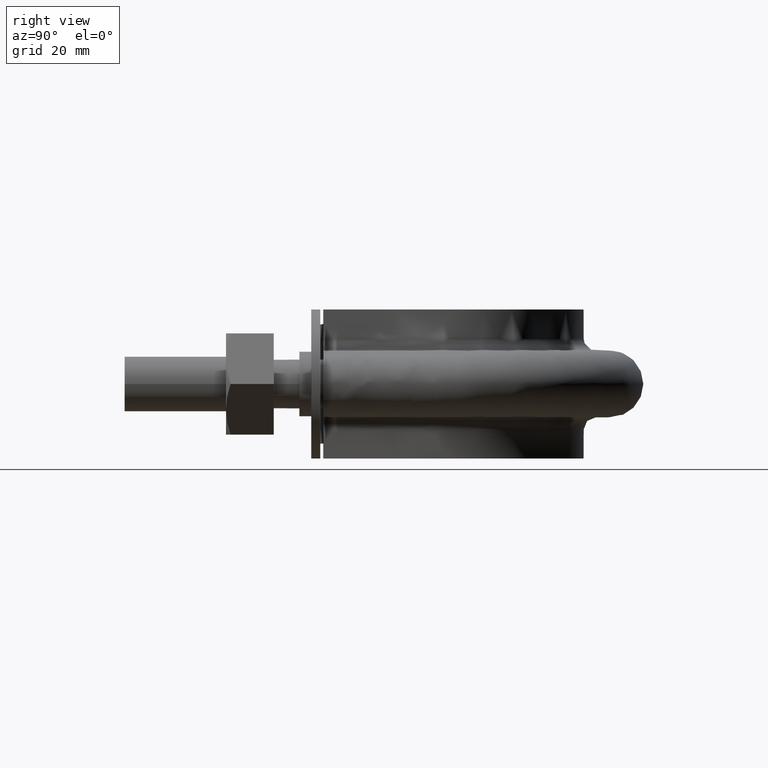
[diagram: clean part render]
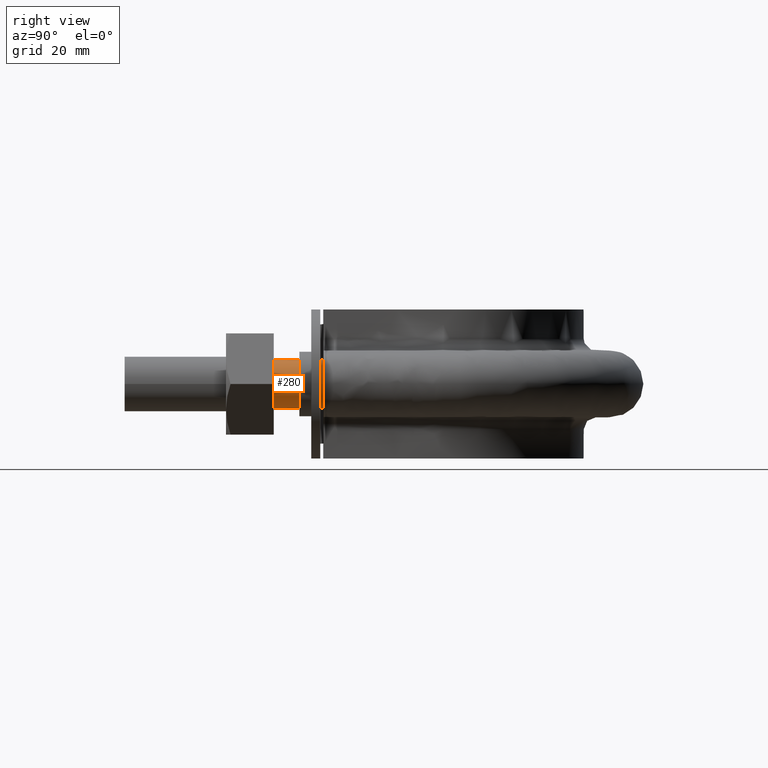
[diagram: same view with one face highlighted and labeled with its STEP entity id]
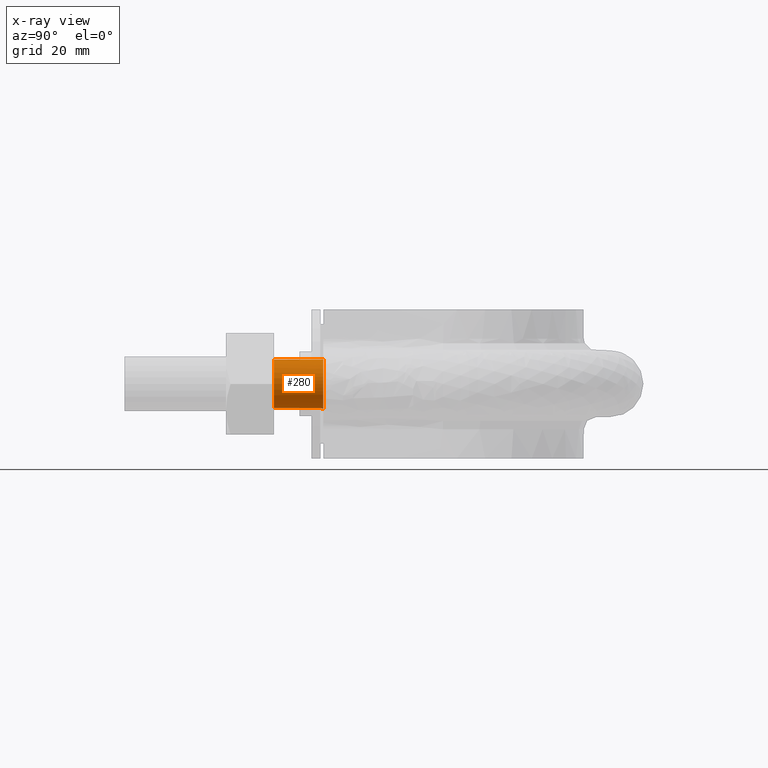
[diagram: x-ray of the same camera — body ghosted, the highlighted face saturated]
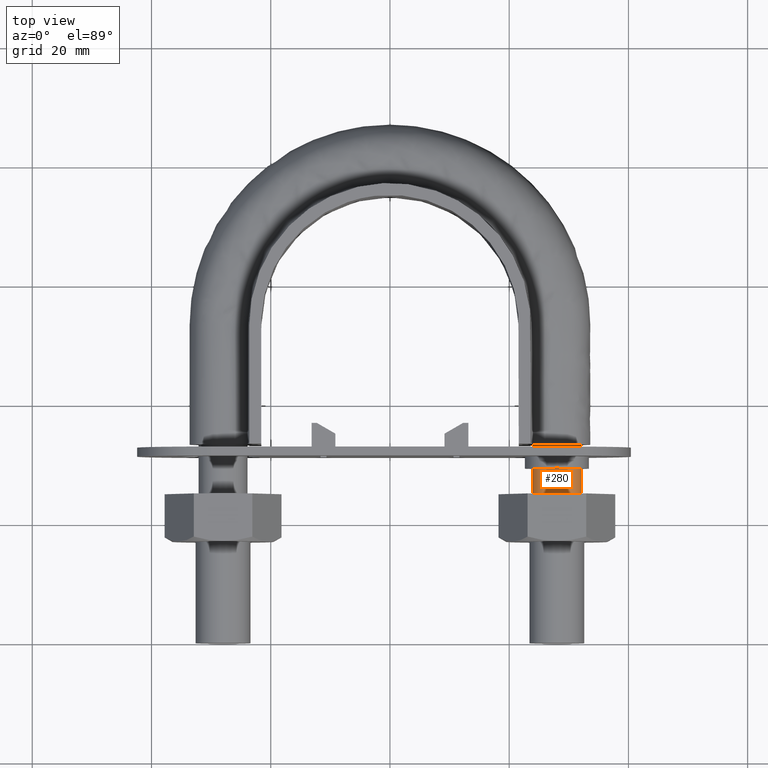
[diagram: same view with one face highlighted and labeled with its STEP entity id]
A machine part, right view. The second image highlights one B-rep face of the part: STEP entity #280.
The next image is the same camera in x-ray: the body ghosted, the highlighted face saturated — about 0% of this face is hidden behind the body in this view.
A second angle (top view) of the same face is appended — the face is thin or edge-on in the first view.
In plain terms, the highlighted cylindrical surface (bore or boss wall) has radius 4.1 mm, axis along (-0, -1, -0).
Its self-contained STEP definition (entity closure, byte-faithful):
#280 = ADVANCED_FACE( '', ( #410, #411 ), #412, .T. );
#410 = FACE_OUTER_BOUND( '', #1488, .T. );
#411 = FACE_OUTER_BOUND( '', #1489, .T. );
#412 = CYLINDRICAL_SURFACE( '', #1490, 4.10000000000000 );
#1488 = EDGE_LOOP( '', ( #1813 ) );
#1489 = EDGE_LOOP( '', ( #1814, #1815, #1816, #1817, #1818, #1819, #1820 ) );
#1490 = AXIS2_PLACEMENT_3D( '', #1821, #1822, #1823 );
#1813 = ORIENTED_EDGE( '', *, *, #2554, .T. );
#1814 = ORIENTED_EDGE( '', *, *, #2555, .T. );
#1815 = ORIENTED_EDGE( '', *, *, #2556, .T. );
#1816 = ORIENTED_EDGE( '', *, *, #2557, .T. );
#1817 = ORIENTED_EDGE( '', *, *, #2553, .T. );
#1818 = ORIENTED_EDGE( '', *, *, #2558, .T. );
#1819 = ORIENTED_EDGE( '', *, *, #2559, .T. );
#1820 = ORIENTED_EDGE( '', *, *, #2560, .T. );
#1821 = CARTESIAN_POINT( '', ( 28.0000000000000, 33.3000000000000, 2.02060048380692E-015 ) );
#1822 = DIRECTION( '', ( -2.44921270764475E-016, -1.00000000000000, -6.12303176911189E-017 ) );
#1823 = DIRECTION( '', ( 1.00000000000000, -2.44921270764475E-016, -7.49830360911069E-033 ) );
#2553 = EDGE_CURVE( '', #2792, #2803, #2812, .T. );
#2554 = EDGE_CURVE( '', #2813, #2813, #2814, .T. );
#2555 = EDGE_CURVE( '', #2797, #2795, #2815, .T. );
#2556 = EDGE_CURVE( '', #2795, #2793, #2816, .T. );
#2557 = EDGE_CURVE( '', #2793, #2792, #2817, .T. );
#2558 = EDGE_CURVE( '', #2803, #2801, #2818, .T. );
#2559 = EDGE_CURVE( '', #2801, #2799, #2819, .T. );
#2560 = EDGE_CURVE( '', #2799, #2797, #2820, .T. );
#2792 = VERTEX_POINT( '', #3384 );
#2793 = VERTEX_POINT( '', #3385 );
#2795 = VERTEX_POINT( '', #3390 );
#2797 = VERTEX_POINT( '', #3395 );
#2799 = VERTEX_POINT( '', #3400 );
#2801 = VERTEX_POINT( '', #3405 );
#2803 = VERTEX_POINT( '', #3410 );
#2812 = CIRCLE( '', #3443, 4.10000000000000 );
#2813 = VERTEX_POINT( '', #3444 );
#2814 = CIRCLE( '', #3445, 4.10000000000000 );
#2815 = CIRCLE( '', #3446, 4.10000000000000 );
#2816 = CIRCLE( '', #3447, 4.10000000000000 );
#2817 = CIRCLE( '', #3448, 4.10000000000000 );
#2818 = CIRCLE( '', #3449, 4.10000000000000 );
#2819 = CIRCLE( '', #3450, 4.10000000000000 );
#2820 = CIRCLE( '', #3451, 4.10000000000000 );
#3384 = CARTESIAN_POINT( '', ( 23.9000000000000, 33.3000000000000, -1.29982603829903E-013 ) );
#3385 = CARTESIAN_POINT( '', ( 25.4436918123788, 33.3000000000000, 3.20550907811860 ) );
#3390 = CARTESIAN_POINT( '', ( 28.9123358292210, 33.3000000000000, 3.99720443994545 ) );
#3395 = CARTESIAN_POINT( '', ( 31.6939723584000, 33.3000000000000, 1.77892333038186 ) );
#3400 = CARTESIAN_POINT( '', ( 31.6939723584001, 33.3000000000000, -1.77892333038159 ) );
#3405 = CARTESIAN_POINT( '', ( 28.9123358292213, 33.3000000000000, -3.99720443994537 ) );
#3410 = CARTESIAN_POINT( '', ( 25.4436918123817, 33.3000000000000, -3.20550907812093 ) );
#3443 = AXIS2_PLACEMENT_3D( '', #4026, #4027, #4028 );
#3444 = CARTESIAN_POINT( '', ( 32.1000000000000, 25.0000000000000, 1.51238884697064E-015 ) );
#3445 = AXIS2_PLACEMENT_3D( '', #4029, #4030, #4031 );
#3446 = AXIS2_PLACEMENT_3D( '', #4032, #4033, #4034 );
#3447 = AXIS2_PLACEMENT_3D( '', #4035, #4036, #4037 );
#3448 = AXIS2_PLACEMENT_3D( '', #4038, #4039, #4040 );
#3449 = AXIS2_PLACEMENT_3D( '', #4041, #4042, #4043 );
#3450 = AXIS2_PLACEMENT_3D( '', #4044, #4045, #4046 );
#3451 = AXIS2_PLACEMENT_3D( '', #4047, #4048, #4049 );
#4026 = CARTESIAN_POINT( '', ( 28.0000000000000, 33.3000000000000, 2.02060048380692E-015 ) );
#4027 = DIRECTION( '', ( -2.44921270764475E-016, -1.00000000000000, -6.12303176911189E-017 ) );
#4028 = DIRECTION( '', ( 1.00000000000000, -2.44921270764475E-016, -7.49830360911069E-033 ) );
#4029 = CARTESIAN_POINT( '', ( 28.0000000000000, 25.0000000000000, 1.51238884697064E-015 ) );
#4030 = DIRECTION( '', ( 2.44921270764475E-016, 1.00000000000000, 6.12303176911188E-017 ) );
#4031 = DIRECTION( '', ( 1.00000000000000, -2.44921270764475E-016, 0.000000000000000 ) );
#4032 = CARTESIAN_POINT( '', ( 28.0000000000000, 33.3000000000000, 2.02060048380692E-015 ) );
#4033 = DIRECTION( '', ( -2.44921270764475E-016, -1.00000000000000, -6.12303176911189E-017 ) );
#4034 = DIRECTION( '', ( 1.00000000000000, -2.44921270764475E-016, -7.49830360911069E-033 ) );
#4035 = CARTESIAN_POINT( '', ( 28.0000000000000, 33.3000000000000, 2.02060048380692E-015 ) );
#4036 = DIRECTION( '', ( -2.44921270764475E-016, -1.00000000000000, -6.12303176911189E-017 ) );
#4037 = DIRECTION( '', ( 1.00000000000000, -2.44921270764475E-016, -7.49830360911069E-033 ) );
#4038 = CARTESIAN_POINT( '', ( 28.0000000000000, 33.3000000000000, 2.02060048380692E-015 ) );
#4039 = DIRECTION( '', ( -2.44921270764475E-016, -1.00000000000000, -6.12303176911189E-017 ) );
#4040 = DIRECTION( '', ( 1.00000000000000, -2.44921270764475E-016, -7.49830360911069E-033 ) );
#4041 = CARTESIAN_POINT( '', ( 28.0000000000000, 33.3000000000000, 2.02060048380692E-015 ) );
#4042 = DIRECTION( '', ( -2.44921270764475E-016, -1.00000000000000, -6.12303176911189E-017 ) );
#4043 = DIRECTION( '', ( 1.00000000000000, -2.44921270764475E-016, -7.49830360911069E-033 ) );
#4044 = CARTESIAN_POINT( '', ( 28.0000000000000, 33.3000000000000, 2.02060048380692E-015 ) );
#4045 = DIRECTION( '', ( -2.44921270764475E-016, -1.00000000000000, -6.12303176911189E-017 ) );
#4046 = DIRECTION( '', ( 1.00000000000000, -2.44921270764475E-016, -7.49830360911069E-033 ) );
#4047 = CARTESIAN_POINT( '', ( 28.0000000000000, 33.3000000000000, 2.02060048380692E-015 ) );
#4048 = DIRECTION( '', ( -2.44921270764475E-016, -1.00000000000000, -6.12303176911189E-017 ) );
#4049 = DIRECTION( '', ( 1.00000000000000, -2.44921270764475E-016, -7.49830360911069E-033 ) );